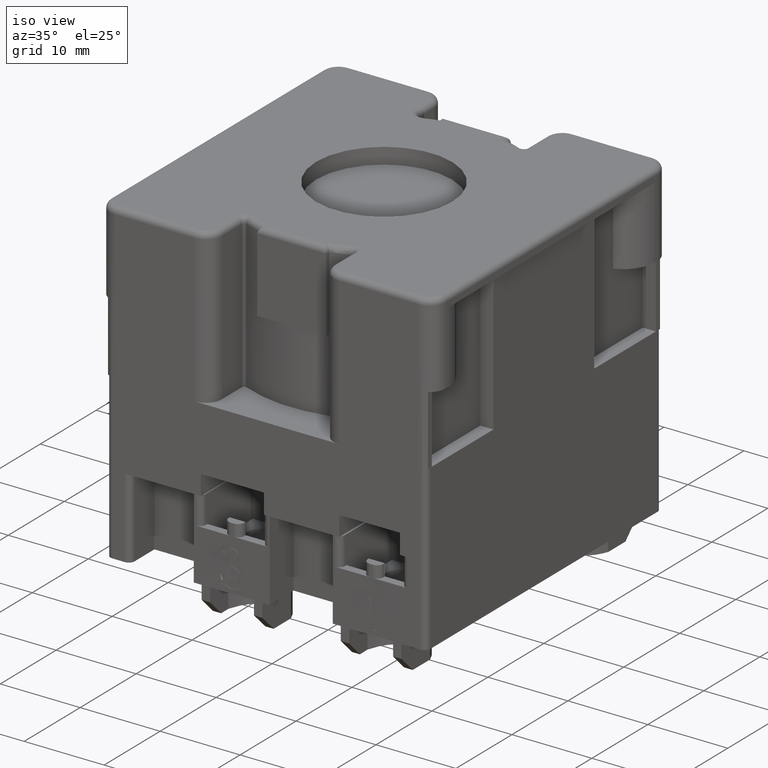
[diagram: clean part render]
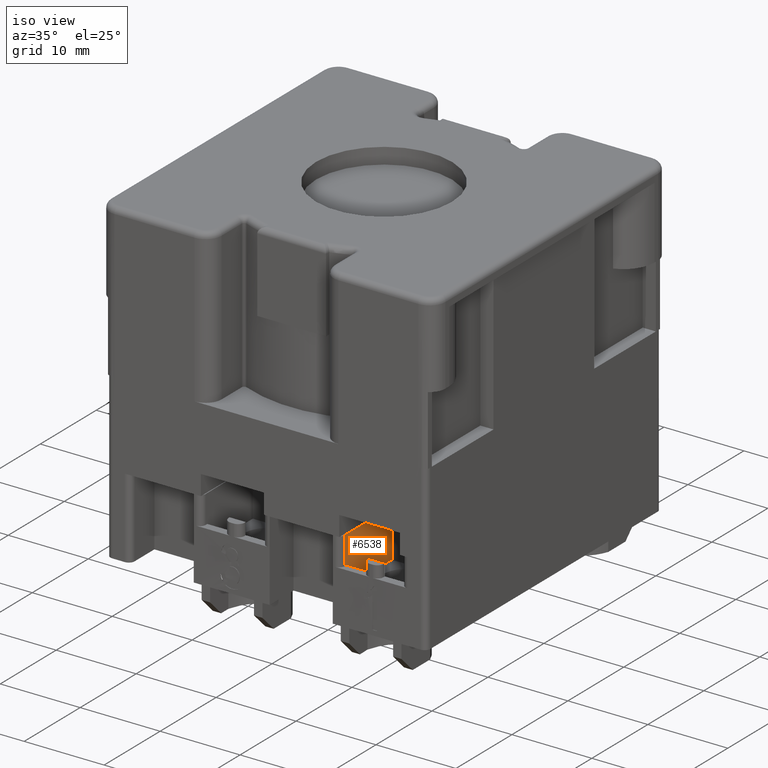
[diagram: same view with one face highlighted and labeled with its STEP entity id]
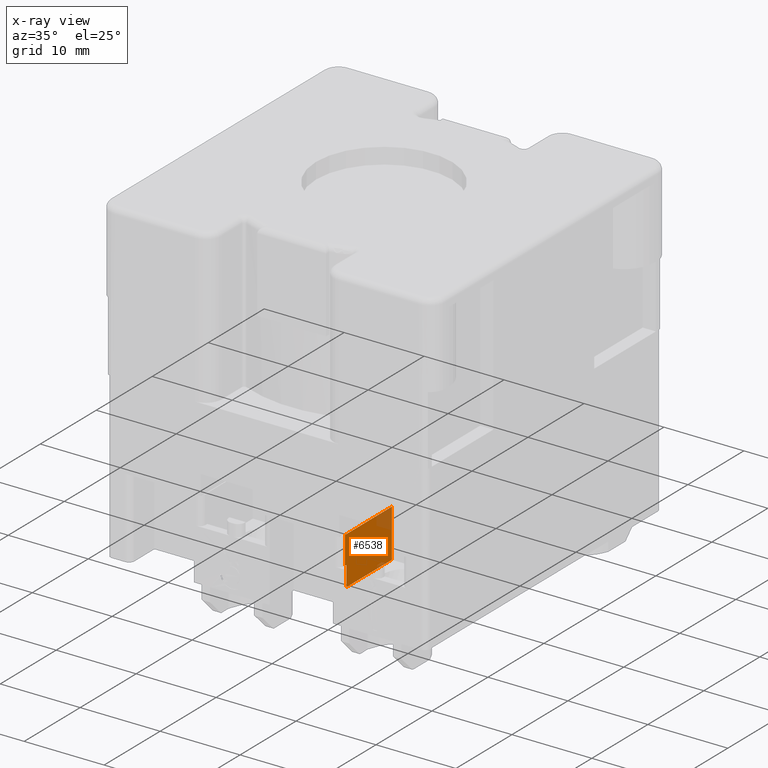
[diagram: x-ray of the same camera — body ghosted, the highlighted face saturated]
A machine part, iso view. The second image highlights one B-rep face of the part: STEP entity #6538.
The next image is the same camera in x-ray: the body ghosted, the highlighted face saturated — about 12% of this face is hidden behind the body in this view.
In plain terms, the highlighted planar face has unit normal (-1, 0, 0).
Its self-contained STEP definition (entity closure, byte-faithful):
#3990=CARTESIAN_POINT('',(9.300064290497051,-15.749481154475699,-29.700000000000003));
#3991=VERTEX_POINT('',#3990);
#4006=CARTESIAN_POINT('',(9.300062858732813,-20.300003888814025,-29.700000000000003));
#4007=VERTEX_POINT('',#4006);
#4015=CARTESIAN_POINT('',(9.300064290496902,-15.749481154475699,-29.700000000000003));
#4016=DIRECTION('',(0.0,-1.0,0.0));
#4017=VECTOR('',#4016,4.550522734338326);
#4018=LINE('',#4015,#4017);
#4019=EDGE_CURVE('',#3991,#4007,#4018,.T.);
#5000=CARTESIAN_POINT('',(9.300064290497229,-20.000010027892504,-35.700000000000003));
#5001=VERTEX_POINT('',#5000);
#5032=CARTESIAN_POINT('',(9.300064290496902,-11.870842543062501,-35.700000000000003));
#5033=VERTEX_POINT('',#5032);
#5040=CARTESIAN_POINT('',(9.300064290496902,-11.870842543062501,-35.700000000000003));
#5041=DIRECTION('',(0.0,-1.0,0.0));
#5042=VECTOR('',#5041,8.129167484830003);
#5043=LINE('',#5040,#5042);
#5044=EDGE_CURVE('',#5033,#5001,#5043,.T.);
#5065=CARTESIAN_POINT('',(9.300062858730485,-20.300003888802415,-33.200000000000003));
#5066=VERTEX_POINT('',#5065);
#5076=CARTESIAN_POINT('',(9.300061426967341,-20.300003888810902,-33.200000000000003));
#5077=DIRECTION('',(0.0,0.0,1.0));
#5078=VECTOR('',#5077,3.5);
#5079=LINE('',#5076,#5078);
#5080=EDGE_CURVE('',#5066,#4007,#5079,.T.);
#6488=CARTESIAN_POINT('',(9.300064290496902,-11.870842543062501,-29.700000000000003));
#6489=VERTEX_POINT('',#6488);
#6496=CARTESIAN_POINT('',(9.300064290496902,-11.870842543062501,-35.700000000000003));
#6497=DIRECTION('',(0.0,0.0,1.0));
#6498=VECTOR('',#6497,6.0);
#6499=LINE('',#6496,#6498);
#6500=EDGE_CURVE('',#5033,#6489,#6499,.T.);
#6507=CARTESIAN_POINT('',(9.300064290496902,-11.870842543062501,-35.700000000000003));
#6508=DIRECTION('',(-1.0,0.0,0.0));
#6509=DIRECTION('',(0.0,0.0,1.0));
#6510=AXIS2_PLACEMENT_3D('',#6507,#6508,#6509);
#6511=PLANE('',#6510);
#6512=CARTESIAN_POINT('',(9.300064290497229,-20.000010027892898,-33.200000000000003));
#6513=VERTEX_POINT('',#6512);
#6514=CARTESIAN_POINT('',(9.300064290497229,-20.000010027892898,-33.200000000000003));
#6515=DIRECTION('',(0.0,-1.0,0.0));
#6516=VECTOR('',#6515,0.299993860909517);
#6517=LINE('',#6514,#6516);
#6518=EDGE_CURVE('',#6513,#5066,#6517,.T.);
#6519=ORIENTED_EDGE('',*,*,#6518,.F.);
#6520=CARTESIAN_POINT('',(9.300064290497229,-20.000010027892504,-33.200000000000003));
#6521=DIRECTION('',(0.0,0.0,-1.0));
#6522=VECTOR('',#6521,2.5);
#6523=LINE('',#6520,#6522);
#6524=EDGE_CURVE('',#6513,#5001,#6523,.T.);
#6525=ORIENTED_EDGE('',*,*,#6524,.T.);
#6526=ORIENTED_EDGE('',*,*,#5044,.F.);
#6527=ORIENTED_EDGE('',*,*,#6500,.T.);
#6528=CARTESIAN_POINT('',(9.300064290496902,-11.870842543062501,-29.700000000000003));
#6529=DIRECTION('',(0.0,-1.0,0.0));
#6530=VECTOR('',#6529,3.878638611413198);
#6531=LINE('',#6528,#6530);
#6532=EDGE_CURVE('',#6489,#3991,#6531,.T.);
#6533=ORIENTED_EDGE('',*,*,#6532,.T.);
#6534=ORIENTED_EDGE('',*,*,#4019,.T.);
#6535=ORIENTED_EDGE('',*,*,#5080,.F.);
#6536=EDGE_LOOP('',(#6519,#6525,#6526,#6527,#6533,#6534,#6535));
#6537=FACE_OUTER_BOUND('',#6536,.T.);
#6538=ADVANCED_FACE('',(#6537),#6511,.F.);